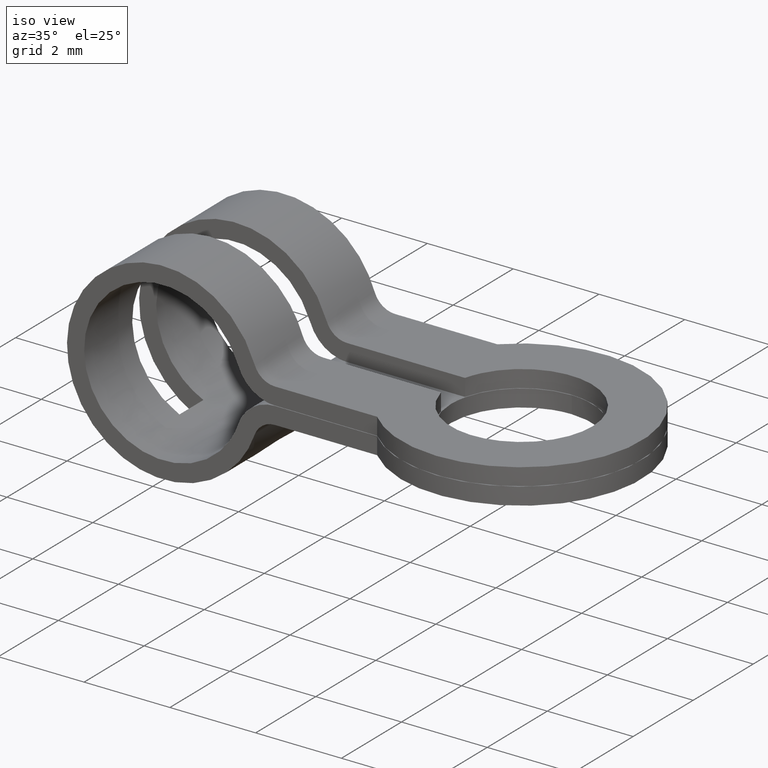
[diagram: clean part render]
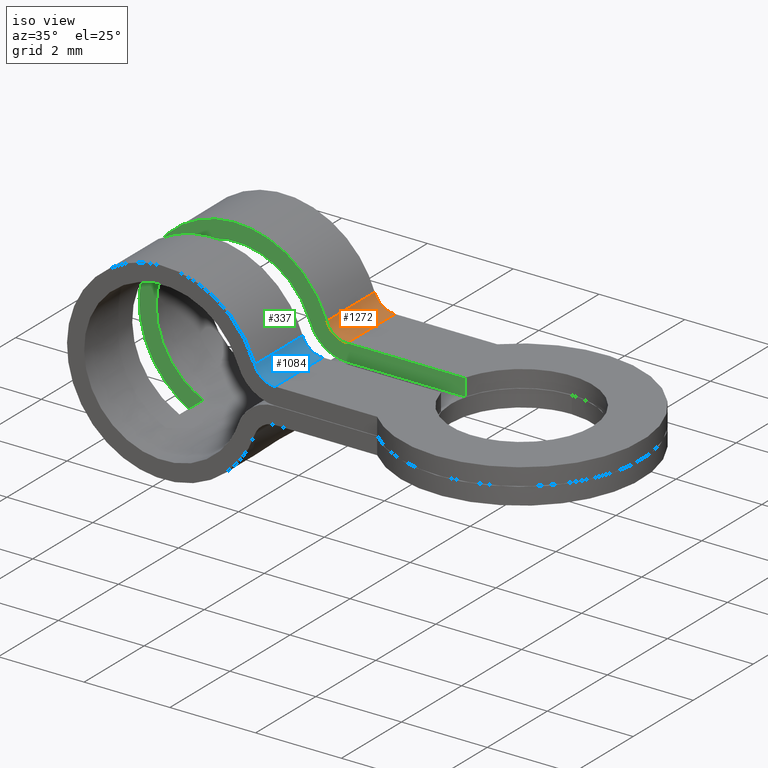
[diagram: same view with three faces highlighted in distinct colors, each labeled with its STEP entity id]
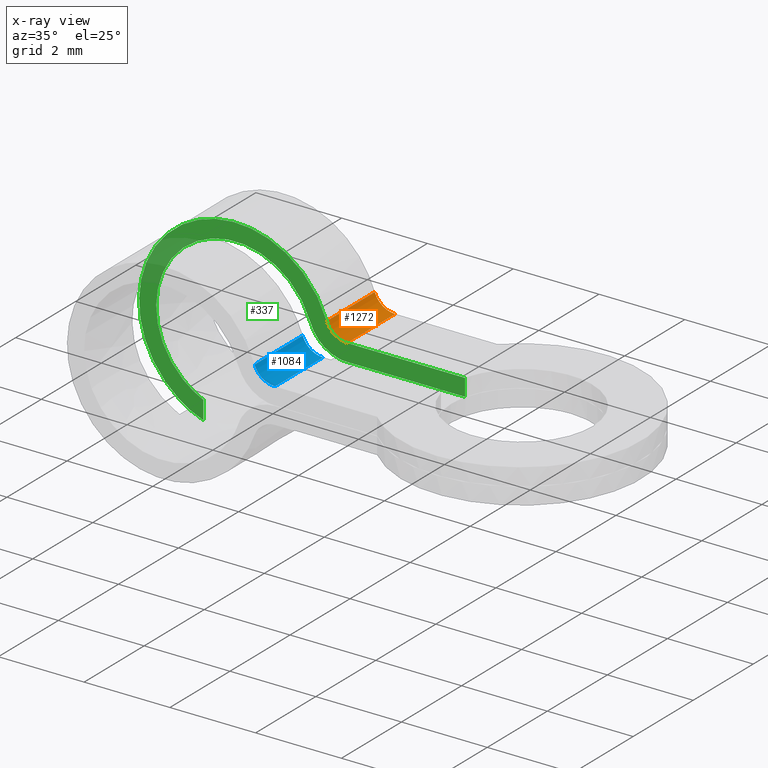
[diagram: x-ray of the same camera — body ghosted, the three highlighted faces saturated]
A machine part, iso view with three faces highlighted in distinct colors.
The next image is the same camera in x-ray (body ghosted, the three faces saturated) — at least one of them is partly hidden behind the body in this view.
Their STEP definitions:

[orange] entity #1272 — the highlighted face is a freeform B-spline surface patch.
#296=CARTESIAN_POINT('',(2.846820170901330,0.399999999999956,0.405000000000000));
#297=VERTEX_POINT('',#296);
#303=CARTESIAN_POINT('',(2.374671048919270,0.399999999999956,0.740454545454545));
#304=VERTEX_POINT('',#303);
#305=CARTESIAN_POINT('',(2.374671048919270,0.399999999999956,0.740454545454545));
#306=CARTESIAN_POINT('',(2.491578013459288,0.399999999999956,0.405000000000000));
#307=CARTESIAN_POINT('',(2.846820170901330,0.399999999999956,0.405000000000000));
#315=(BOUNDED_CURVE()B_SPLINE_CURVE(2,(#305,#306,#307),.UNSPECIFIED.,.F.,.U.)CURVE()GEOMETRIC_REPRESENTATION_ITEM()QUASI_UNIFORM_CURVE()RATIONAL_B_SPLINE_CURVE((1.0,0.815196574174263,1.0))REPRESENTATION_ITEM(''));
#316=EDGE_CURVE('',#304,#297,#315,.T.);
#1006=CARTESIAN_POINT('',(2.374671048919270,1.999999999999780,0.740454545454545));
#1007=VERTEX_POINT('',#1006);
#1027=CARTESIAN_POINT('',(2.846820170901330,1.999999999999780,0.405000000000000));
#1028=VERTEX_POINT('',#1027);
#1029=CARTESIAN_POINT('',(2.846820170901330,1.999999999999780,0.405000000000000));
#1030=CARTESIAN_POINT('',(2.491578013459288,1.999999999999781,0.405000000000000));
#1031=CARTESIAN_POINT('',(2.374671048919270,1.999999999999780,0.740454545454545));
#1039=(BOUNDED_CURVE()B_SPLINE_CURVE(2,(#1029,#1030,#1031),.UNSPECIFIED.,.F.,.U.)CURVE()GEOMETRIC_REPRESENTATION_ITEM()QUASI_UNIFORM_CURVE()RATIONAL_B_SPLINE_CURVE((1.0,0.815196574174263,1.0))REPRESENTATION_ITEM(''));
#1040=EDGE_CURVE('',#1028,#1007,#1039,.T.);
#1141=CARTESIAN_POINT('',(2.374671048919270,1.999999999999780,0.740454545454545));
#1142=CARTESIAN_POINT('',(2.374671048919270,0.399999999999956,0.740454545454545));
#1143=QUASI_UNIFORM_CURVE('',1,(#1141,#1142),.UNSPECIFIED.,.F.,.U.);
#1144=EDGE_CURVE('',#1007,#304,#1143,.T.);
#1198=CARTESIAN_POINT('',(2.846820170901330,1.999999999999780,0.405000000000000));
#1199=CARTESIAN_POINT('',(2.846820170901330,0.399999999999956,0.405000000000000));
#1200=QUASI_UNIFORM_CURVE('',1,(#1198,#1199),.UNSPECIFIED.,.F.,.U.);
#1201=EDGE_CURVE('',#1028,#297,#1200,.T.);
#1252=CARTESIAN_POINT('',(2.861771980859047,2.039999999999776,0.405223606620933));
#1253=CARTESIAN_POINT('',(2.861771980859047,0.358999999999961,0.405223606620933));
#1254=CARTESIAN_POINT('',(2.472632781637664,2.039999999999776,0.393581729511617));
#1255=CARTESIAN_POINT('',(2.472632781637664,0.358999999999960,0.393581729511617));
#1256=CARTESIAN_POINT('',(2.365956828138757,2.039999999999777,0.767994724235874));
#1257=CARTESIAN_POINT('',(2.365956828138757,0.358999999999960,0.767994724235874));
#1265=(BOUNDED_SURFACE()B_SPLINE_SURFACE(1,2,((#1252,#1254,#1256),(#1253,#1255,#1257)),.UNSPECIFIED.,.F.,.F.,.U.)B_SPLINE_SURFACE_WITH_KNOTS((2,2),(3,3),(0.0,1.0),(0.0,0.983385445907898),.UNSPECIFIED.)GEOMETRIC_REPRESENTATION_ITEM()RATIONAL_B_SPLINE_SURFACE(((1.0,0.786220025389571,0.992896282096054),(1.0,0.786220025389571,0.992896282096054)))REPRESENTATION_ITEM('')SURFACE());
#1266=ORIENTED_EDGE('',*,*,#1144,.T.);
#1267=ORIENTED_EDGE('',*,*,#316,.T.);
#1268=ORIENTED_EDGE('',*,*,#1201,.F.);
#1269=ORIENTED_EDGE('',*,*,#1040,.T.);
#1270=EDGE_LOOP('',(#1266,#1267,#1268,#1269));
#1271=FACE_OUTER_BOUND('',#1270,.T.);
#1272=ADVANCED_FACE('',(#1271),#1265,.F.);

[blue] entity #1084 — the highlighted face is a freeform B-spline surface patch.
#345=CARTESIAN_POINT('',(2.374671048919270,-0.400000000000178,0.740454545454545));
#346=VERTEX_POINT('',#345);
#364=CARTESIAN_POINT('',(2.846820170901330,-0.400000000000178,0.405000000000000));
#365=VERTEX_POINT('',#364);
#366=CARTESIAN_POINT('',(2.846820170901330,-0.400000000000178,0.405000000000000));
#367=CARTESIAN_POINT('',(2.491578013459288,-0.400000000000178,0.405000000000000));
#368=CARTESIAN_POINT('',(2.374671048919270,-0.400000000000178,0.740454545454545));
#376=(BOUNDED_CURVE()B_SPLINE_CURVE(2,(#366,#367,#368),.UNSPECIFIED.,.F.,.U.)CURVE()GEOMETRIC_REPRESENTATION_ITEM()QUASI_UNIFORM_CURVE()RATIONAL_B_SPLINE_CURVE((1.0,0.815196574174263,1.0))REPRESENTATION_ITEM(''));
#377=EDGE_CURVE('',#365,#346,#376,.T.);
#876=CARTESIAN_POINT('',(2.846820170901330,-2.0,0.405000000000000));
#877=VERTEX_POINT('',#876);
#883=CARTESIAN_POINT('',(2.374671048919270,-2.0,0.740454545454545));
#884=VERTEX_POINT('',#883);
#885=CARTESIAN_POINT('',(2.374671048919270,-2.0,0.740454545454545));
#886=CARTESIAN_POINT('',(2.491578013459288,-2.000000000000000,0.405000000000000));
#887=CARTESIAN_POINT('',(2.846820170901330,-2.0,0.405000000000000));
#895=(BOUNDED_CURVE()B_SPLINE_CURVE(2,(#885,#886,#887),.UNSPECIFIED.,.F.,.U.)CURVE()GEOMETRIC_REPRESENTATION_ITEM()QUASI_UNIFORM_CURVE()RATIONAL_B_SPLINE_CURVE((1.0,0.815196574174263,1.0))REPRESENTATION_ITEM(''));
#896=EDGE_CURVE('',#884,#877,#895,.T.);
#1056=CARTESIAN_POINT('',(2.859908645055267,-0.360000000000182,0.405171337512222));
#1057=CARTESIAN_POINT('',(2.859908645055267,-2.040999999999996,0.405171337512222));
#1058=CARTESIAN_POINT('',(2.476376622962968,-0.360000000000182,0.395128198062440));
#1059=CARTESIAN_POINT('',(2.476376622962968,-2.040999999999996,0.395128198062440));
#1060=CARTESIAN_POINT('',(2.367410303467235,-0.360000000000182,0.762992327648038));
#1061=CARTESIAN_POINT('',(2.367410303467235,-2.040999999999996,0.762992327648038));
#1069=(BOUNDED_SURFACE()B_SPLINE_SURFACE(1,2,((#1056,#1058,#1060),(#1057,#1059,#1061)),.UNSPECIFIED.,.F.,.F.,.U.)GEOMETRIC_REPRESENTATION_ITEM()QUASI_UNIFORM_SURFACE()RATIONAL_B_SPLINE_SURFACE(((1.0,0.793353340291235,1.0),(1.0,0.793353340291235,1.0)))REPRESENTATION_ITEM('')SURFACE());
#1070=CARTESIAN_POINT('',(2.846820170901330,-0.400000000000178,0.405000000000000));
#1071=CARTESIAN_POINT('',(2.846820170901330,-2.0,0.405000000000000));
#1072=QUASI_UNIFORM_CURVE('',1,(#1070,#1071),.UNSPECIFIED.,.F.,.U.);
#1073=EDGE_CURVE('',#365,#877,#1072,.T.);
#1074=ORIENTED_EDGE('',*,*,#1073,.F.);
#1075=ORIENTED_EDGE('',*,*,#377,.T.);
#1076=CARTESIAN_POINT('',(2.374671048919270,-0.400000000000178,0.740454545454545));
#1077=CARTESIAN_POINT('',(2.374671048919270,-2.0,0.740454545454545));
#1078=QUASI_UNIFORM_CURVE('',1,(#1076,#1077),.UNSPECIFIED.,.F.,.U.);
#1079=EDGE_CURVE('',#346,#884,#1078,.T.);
#1080=ORIENTED_EDGE('',*,*,#1079,.T.);
#1081=ORIENTED_EDGE('',*,*,#896,.T.);
#1082=EDGE_LOOP('',(#1074,#1075,#1080,#1081));
#1083=FACE_OUTER_BOUND('',#1082,.T.);
#1084=ADVANCED_FACE('',(#1083),#1069,.F.);

[green] entity #337 — the highlighted face is a freeform B-spline surface patch.
#234=CARTESIAN_POINT('',(-2.379118236689727,0.400000000000013,-2.339634547686690));
#235=CARTESIAN_POINT('',(-2.379118236689727,0.400000000000013,2.467650605610666));
#236=CARTESIAN_POINT('',(5.978777532452883,0.400000000000013,-2.339634547686690));
#237=CARTESIAN_POINT('',(5.978777532452883,0.400000000000013,2.467650605610666));
#238=B_SPLINE_SURFACE_WITH_KNOTS('',1,1,((#234,#236),(#235,#237)),.UNSPECIFIED.,.F.,.F.,.U.,(2,2),(2,2),(0.0,4.807285153297356),(0.0,8.357895769142608),.UNSPECIFIED.);
#239=CARTESIAN_POINT('',(-0.500000000000199,0.400000000000067,-1.691153452528690));
#240=VERTEX_POINT('',#239);
#241=CARTESIAN_POINT('',(-0.500000000000199,0.400000000000067,-2.121320343559570));
#242=VERTEX_POINT('',#241);
#243=CARTESIAN_POINT('',(-0.500000000000199,0.400000000000067,-1.691153452528690));
#244=CARTESIAN_POINT('',(-0.500000000000199,0.400000000000067,-2.121320343559570));
#245=QUASI_UNIFORM_CURVE('',1,(#243,#244),.UNSPECIFIED.,.F.,.U.);
#246=EDGE_CURVE('',#240,#242,#245,.T.);
#247=ORIENTED_EDGE('',*,*,#246,.F.);
#248=CARTESIAN_POINT('',(1.996951751333620,0.399999999999956,0.608818181818182));
#249=VERTEX_POINT('',#248);
#250=CARTESIAN_POINT('',(1.996951751333620,0.399999999999956,0.608818181818182));
#251=CARTESIAN_POINT('',(1.524505772812885,0.400000000000067,1.964461548319685));
#252=CARTESIAN_POINT('',(0.094008977677152,0.400000000000067,1.843411728549722));
#253=CARTESIAN_POINT('',(-1.336487817458581,0.400000000000067,1.722361908779758));
#254=CARTESIAN_POINT('',(-1.574415711386923,0.400000000000067,0.306606118733054));
#255=CARTESIAN_POINT('',(-1.812343605315266,0.400000000000067,-1.109149671313651));
#256=CARTESIAN_POINT('',(-0.500000000000199,0.400000000000067,-1.691153452528688));
#264=(BOUNDED_CURVE()B_SPLINE_CURVE(2,(#250,#251,#252,#253,#254,#255,#256),.UNSPECIFIED.,.F.,.U.)B_SPLINE_CURVE_WITH_KNOTS((3,2,2,3),(0.0,0.333333333333333,0.666666666666667,1.0),.UNSPECIFIED.)CURVE()GEOMETRIC_REPRESENTATION_ITEM()RATIONAL_B_SPLINE_CURVE((1.0,0.790030446406739,1.0,0.790030446406739,1.0,0.790030446406739,1.0))REPRESENTATION_ITEM(''));
#265=EDGE_CURVE('',#249,#240,#264,.T.);
#266=ORIENTED_EDGE('',*,*,#265,.F.);
#267=CARTESIAN_POINT('',(2.846820170901330,0.399999999999956,0.005000000000000));
#268=VERTEX_POINT('',#267);
#269=CARTESIAN_POINT('',(1.996951751333622,0.399999999999956,0.608818181818183));
#270=CARTESIAN_POINT('',(2.207384287505652,0.399999999999956,0.005000000000000));
#271=CARTESIAN_POINT('',(2.846820170901330,0.399999999999956,0.005000000000000));
#279=(BOUNDED_CURVE()B_SPLINE_CURVE(2,(#269,#270,#271),.UNSPECIFIED.,.F.,.U.)CURVE()GEOMETRIC_REPRESENTATION_ITEM()QUASI_UNIFORM_CURVE()RATIONAL_B_SPLINE_CURVE((1.0,0.815196574174262,1.0))REPRESENTATION_ITEM(''));
#280=EDGE_CURVE('',#249,#268,#279,.T.);
#281=ORIENTED_EDGE('',*,*,#280,.T.);
#282=CARTESIAN_POINT('',(5.599218940641681,0.399999999999956,0.005000000000033));
#283=VERTEX_POINT('',#282);
#284=CARTESIAN_POINT('',(5.599218940641681,0.399999999999956,0.005000000000033));
#285=CARTESIAN_POINT('',(2.846820170901330,0.399999999999956,0.005000000000000));
#286=QUASI_UNIFORM_CURVE('',1,(#284,#285),.UNSPECIFIED.,.F.,.U.);
#287=EDGE_CURVE('',#283,#268,#286,.T.);
#288=ORIENTED_EDGE('',*,*,#287,.F.);
#289=CARTESIAN_POINT('',(5.599218940641690,0.400000000000006,0.404999999999988));
#290=VERTEX_POINT('',#289);
#291=CARTESIAN_POINT('',(5.599218940641681,0.399999999999956,0.005000000000033));
#292=CARTESIAN_POINT('',(5.599218940641690,0.400000000000006,0.404999999999988));
#293=QUASI_UNIFORM_CURVE('',1,(#291,#292),.UNSPECIFIED.,.F.,.U.);
#294=EDGE_CURVE('',#283,#290,#293,.T.);
#295=ORIENTED_EDGE('',*,*,#294,.T.);
#296=CARTESIAN_POINT('',(2.846820170901330,0.399999999999956,0.405000000000000));
#297=VERTEX_POINT('',#296);
#298=CARTESIAN_POINT('',(2.846820170901330,0.399999999999956,0.405000000000000));
#299=CARTESIAN_POINT('',(5.599218940641690,0.400000000000006,0.404999999999988));
#300=QUASI_UNIFORM_CURVE('',1,(#298,#299),.UNSPECIFIED.,.F.,.U.);
#301=EDGE_CURVE('',#297,#290,#300,.T.);
#302=ORIENTED_EDGE('',*,*,#301,.F.);
#303=CARTESIAN_POINT('',(2.374671048919270,0.399999999999956,0.740454545454545));
#304=VERTEX_POINT('',#303);
#305=CARTESIAN_POINT('',(2.374671048919270,0.399999999999956,0.740454545454545));
#306=CARTESIAN_POINT('',(2.491578013459288,0.399999999999956,0.405000000000000));
#307=CARTESIAN_POINT('',(2.846820170901330,0.399999999999956,0.405000000000000));
#315=(BOUNDED_CURVE()B_SPLINE_CURVE(2,(#305,#306,#307),.UNSPECIFIED.,.F.,.U.)CURVE()GEOMETRIC_REPRESENTATION_ITEM()QUASI_UNIFORM_CURVE()RATIONAL_B_SPLINE_CURVE((1.0,0.815196574174263,1.0))REPRESENTATION_ITEM(''));
#316=EDGE_CURVE('',#304,#297,#315,.T.);
#317=ORIENTED_EDGE('',*,*,#316,.F.);
#318=CARTESIAN_POINT('',(2.374671048919270,0.399999999999956,0.740454545454545));
#319=CARTESIAN_POINT('',(1.784577730629924,0.400000000000067,2.433676900866554));
#320=CARTESIAN_POINT('',(0.002369296627667,0.400000000000067,2.236331602143860));
#321=CARTESIAN_POINT('',(-1.779839137374589,0.400000000000067,2.038986303421166));
#322=CARTESIAN_POINT('',(-1.985195601071888,0.400000000000067,0.257683187167656));
#323=CARTESIAN_POINT('',(-2.190552064769187,0.400000000000067,-1.523619929085855));
#324=CARTESIAN_POINT('',(-0.500000000000202,0.400000000000067,-2.121320343559571));
#332=(BOUNDED_CURVE()B_SPLINE_CURVE(2,(#318,#319,#320,#321,#322,#323,#324),.UNSPECIFIED.,.F.,.U.)B_SPLINE_CURVE_WITH_KNOTS((3,2,2,3),(0.0,0.333333333333333,0.666666666666667,1.0),.UNSPECIFIED.)CURVE()GEOMETRIC_REPRESENTATION_ITEM()RATIONAL_B_SPLINE_CURVE((1.0,0.782037106484249,1.0,0.782037106484249,1.0,0.782037106484249,1.0))REPRESENTATION_ITEM(''));
#333=EDGE_CURVE('',#304,#242,#332,.T.);
#334=ORIENTED_EDGE('',*,*,#333,.T.);
#335=EDGE_LOOP('',(#247,#266,#281,#288,#295,#302,#317,#334));
#336=FACE_OUTER_BOUND('',#335,.T.);
#337=ADVANCED_FACE('',(#336),#238,.F.);